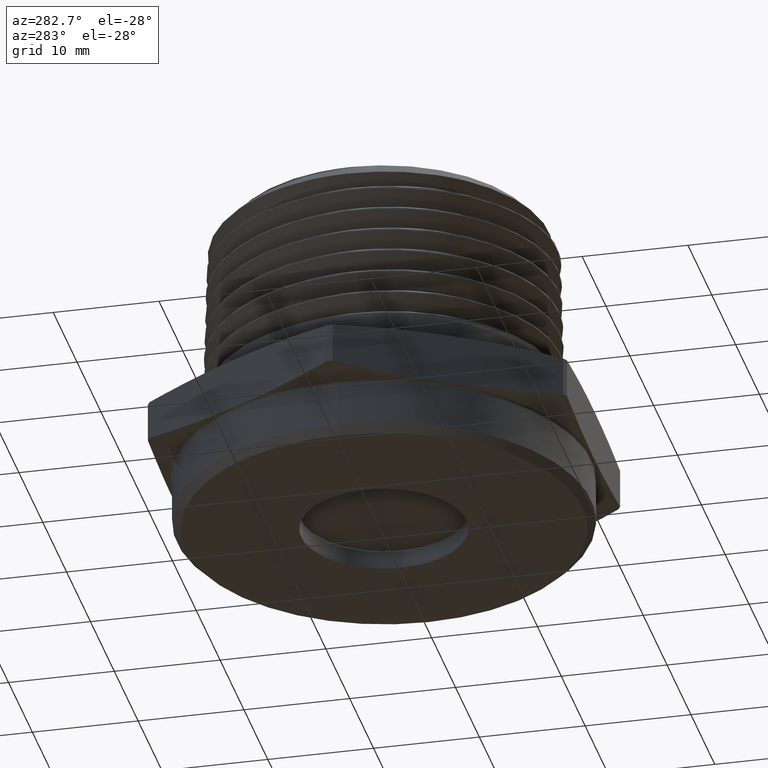
[diagram: clean part render]
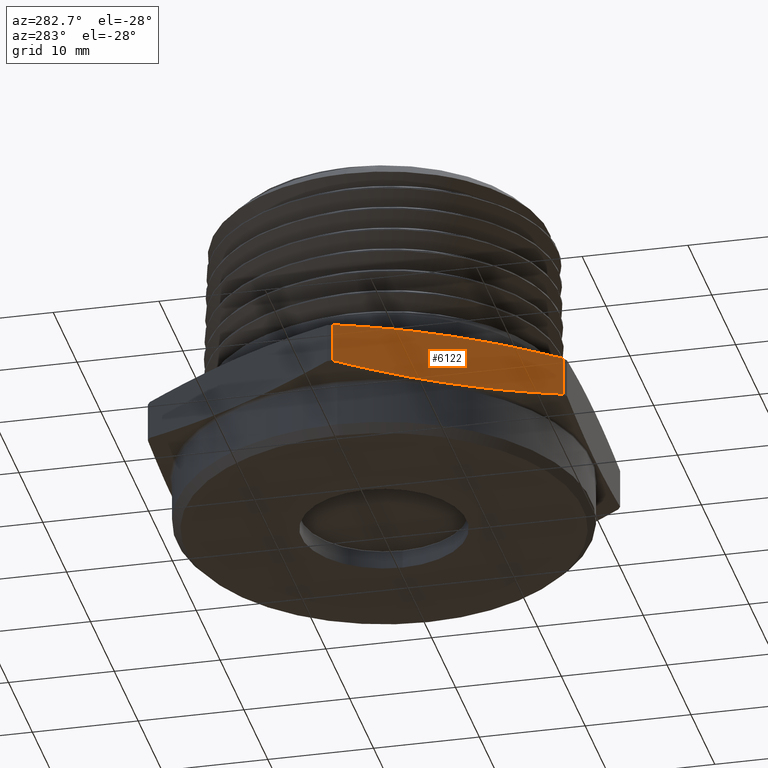
[diagram: same view with one face highlighted and labeled with its STEP entity id]
A machine part, auxiliary view. The second image highlights one B-rep face of the part: STEP entity #6122.
In plain terms, the highlighted planar face has unit normal (0.866, 0.5, 0).
Its self-contained STEP definition (entity closure, byte-faithful):
#102 = AXIS2_PLACEMENT_3D ( 'NONE', #3315, #3320, #3321 ) ;
#3314 = PLANE ( 'NONE',  #102 ) ;
#3315 = CARTESIAN_POINT ( 'NONE',  ( -0.9006664199358163100, 1.365923996832131600E-016, 0.2000000000000000100 ) ) ;
#3320 = DIRECTION ( 'NONE',  ( 0.8660254037844386000, 0.5000000000000001100, -0.0000000000000000000 ) ) ;
#3321 = DIRECTION ( 'NONE',  ( -0.5000000000000001100, 0.8660254037844386000, 0.0000000000000000000 ) ) ;
#3330 = DIRECTION ( 'NONE',  ( -1.254986547952384500E-016, -0.0000000000000000000, -1.000000000000000000 ) ) ;
#3332 = CARTESIAN_POINT ( 'NONE',  ( -0.8946048143019285100, -0.01049900893333932300, 2.749738267734492600E-017 ) ) ;
#4399 = CARTESIAN_POINT ( 'NONE',  ( -0.4563948156017957900, -0.7695009910666609200, 0.1735013344227326300 ) ) ;
#4431 = CARTESIAN_POINT ( 'NONE',  ( -0.4563948156017957900, -0.7695009910666609200, 0.1735013344227326300 ) ) ;
#4435 = CARTESIAN_POINT ( 'NONE',  ( -0.4929123154934733600, -0.7062508258888838800, 0.1811050645475742500 ) ) ;
#4442 = CARTESIAN_POINT ( 'NONE',  ( -0.5294298153851512100, -0.6430006607111074000, 0.1872591829764554400 ) ) ;
#4443 = CARTESIAN_POINT ( 'NONE',  ( -0.6024648151685064700, -0.5165003303555535400, 0.1956557397565389900 ) ) ;
#4444 = CARTESIAN_POINT ( 'NONE',  ( -0.6754998149518622900, -0.3900000000000002400, 0.2000931290100606600 ) ) ;
#4445 = CARTESIAN_POINT ( 'NONE',  ( -0.7485348147352175500, -0.2634996696444466000, 0.1956557397565390200 ) ) ;
#4446 = CARTESIAN_POINT ( 'NONE',  ( -0.8215698145185729200, -0.1369993392888929600, 0.1872591829764555200 ) ) ;
#4447 = CARTESIAN_POINT ( 'NONE',  ( -0.8580873144102508800, -0.07374917411111610300, 0.1811050645475742200 ) ) ;
#4448 = CARTESIAN_POINT ( 'NONE',  ( -0.8946048143019285100, -0.01049900893333932300, 0.1735013344227326600 ) ) ;
#4469 = CARTESIAN_POINT ( 'NONE',  ( -0.8580873144102508800, -0.07374917411111610300, 0.01889493545242575500 ) ) ;
#4478 = CARTESIAN_POINT ( 'NONE',  ( -0.8215698145185730300, -0.1369993392888929400, 0.01274081702354456000 ) ) ;
#4486 = CARTESIAN_POINT ( 'NONE',  ( -0.8946048143019285100, -0.01049900893333932300, 0.02649866557726732900 ) ) ;
#4487 = CARTESIAN_POINT ( 'NONE',  ( -0.7485348147352173200, -0.2634996696444466000, 0.004344260243460967500 ) ) ;
#4488 = CARTESIAN_POINT ( 'NONE',  ( -0.6754998149518619500, -0.3900000000000002900, -9.312901006064194500E-005 ) ) ;
#4489 = CARTESIAN_POINT ( 'NONE',  ( -0.6024648151685067000, -0.5165003303555537600, 0.004344260243460966600 ) ) ;
#4490 = CARTESIAN_POINT ( 'NONE',  ( -0.5294298153851512100, -0.6430006607111075100, 0.01274081702354454300 ) ) ;
#4491 = CARTESIAN_POINT ( 'NONE',  ( -0.4929123154934733600, -0.7062508258888843300, 0.01889493545242571000 ) ) ;
#4492 = CARTESIAN_POINT ( 'NONE',  ( -0.4563948156017957900, -0.7695009910666609200, 0.02649866557726727300 ) ) ;
#4530 = CARTESIAN_POINT ( 'NONE',  ( -0.4563948156017957900, -0.7695009910666609200, 0.02649866557726727300 ) ) ;
#4538 = CARTESIAN_POINT ( 'NONE',  ( -0.8946048143019285100, -0.01049900893333932300, 0.1735013344227326600 ) ) ;
#4545 = CARTESIAN_POINT ( 'NONE',  ( -0.8946048143019285100, -0.01049900893333932300, 0.02649866557726732900 ) ) ;
#4590 = DIRECTION ( 'NONE',  ( 1.254986547952384500E-016, 0.0000000000000000000, 1.000000000000000000 ) ) ;
#4596 = CARTESIAN_POINT ( 'NONE',  ( -0.4563948156017957300, -0.7695009910666608100, -2.749738267734492600E-017 ) ) ;
#4807 = VERTEX_POINT ( 'NONE', #4399 ) ;
#5145 = EDGE_CURVE ( 'NONE', #4807, #5254, #5949, .T. ) ;
#5150 = EDGE_CURVE ( 'NONE', #5263, #5245, #5373, .T. ) ;
#5165 = ORIENTED_EDGE ( 'NONE', *, *, #5150, .T. ) ;
#5166 = ORIENTED_EDGE ( 'NONE', *, *, #5324, .T. ) ;
#5167 = ORIENTED_EDGE ( 'NONE', *, *, #5145, .T. ) ;
#5168 = ORIENTED_EDGE ( 'NONE', *, *, #6581, .T. ) ;
#5245 = VERTEX_POINT ( 'NONE', #4530 ) ;
#5254 = VERTEX_POINT ( 'NONE', #4538 ) ;
#5263 = VERTEX_POINT ( 'NONE', #4545 ) ;
#5324 = EDGE_CURVE ( 'NONE', #5245, #4807, #5507, .T. ) ;
#5373 = B_SPLINE_CURVE_WITH_KNOTS ( 'NONE', 3,
 ( #4486, #4469, #4478, #4487, #4488, #4489, #4490, #4491, #4492 ),
 .UNSPECIFIED., .F., .F.,
 ( 4, 2, 1, 2, 4 ),
 ( 1.920904841469720600E-006, 0.005567187888333153000, 0.01113245487182483600, 0.01669772185531652100, 0.02226298883880821500 ),
 .UNSPECIFIED. ) ;
#5507 = LINE ( 'NONE', #4596, #5513 ) ;
#5513 = VECTOR ( 'NONE', #4590, 39.37007874015748100 ) ;
#5776 = FACE_OUTER_BOUND ( 'NONE', #6049, .T. ) ;
#5786 = LINE ( 'NONE', #3332, #5788 ) ;
#5788 = VECTOR ( 'NONE', #3330, 39.37007874015748100 ) ;
#5949 = B_SPLINE_CURVE_WITH_KNOTS ( 'NONE', 3,
 ( #4431, #4435, #4442, #4443, #4444, #4445, #4446, #4447, #4448 ),
 .UNSPECIFIED., .F., .F.,
 ( 4, 2, 1, 2, 4 ),
 ( 1.920904841449070800E-006, 0.005567187888333134000, 0.01113245487182481900, 0.01669772185531650700, 0.02226298883880819000 ),
 .UNSPECIFIED. ) ;
#6049 = EDGE_LOOP ( 'NONE', ( #5165, #5166, #5167, #5168 ) ) ;
#6122 = ADVANCED_FACE ( 'NONE', ( #5776 ), #3314, .F. ) ;
#6581 = EDGE_CURVE ( 'NONE', #5254, #5263, #5786, .T. ) ;